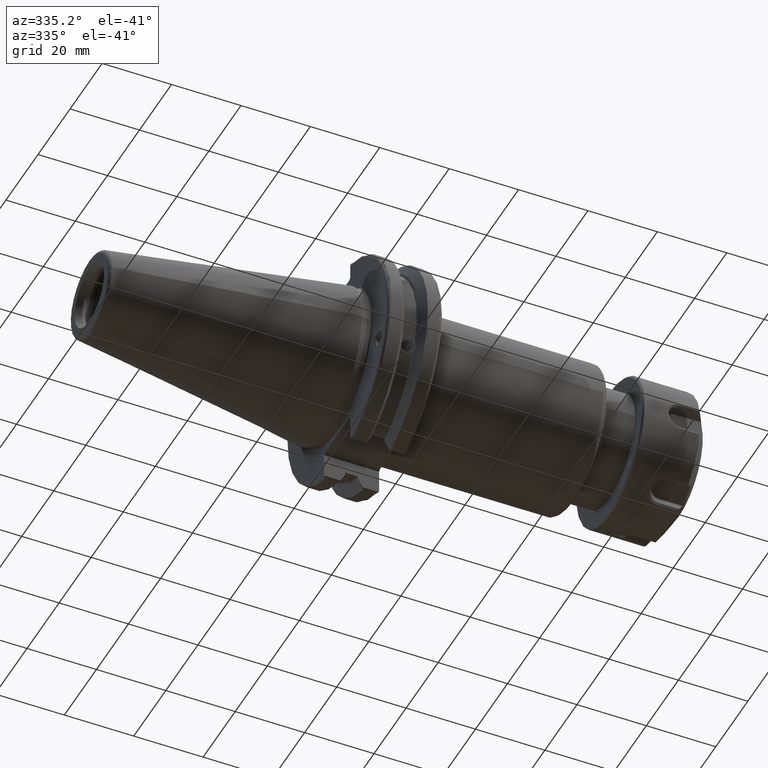
[diagram: clean part render]
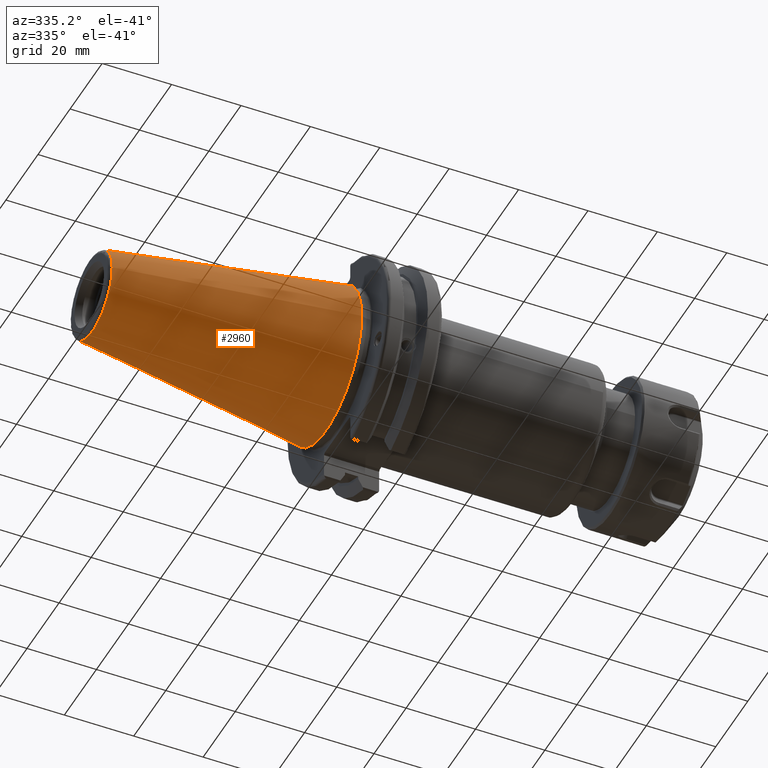
[diagram: same view with one face highlighted and labeled with its STEP entity id]
A machine part, auxiliary view. The second image highlights one B-rep face of the part: STEP entity #2960.
In plain terms, the highlighted conical surface has half-angle 8.297 deg.
Its self-contained STEP definition (entity closure, byte-faithful):
#457=FACE_OUTER_BOUND('',#640,.T.);
#640=EDGE_LOOP('',(#2339,#2340,#2341,#2342,#2343));
#836=LINE('',#5029,#1023);
#1023=VECTOR('',#3839,17.2484375);
#1195=CIRCLE('',#3284,12.3966635780937);
#1196=CIRCLE('',#3285,12.3966635780937);
#1200=CIRCLE('',#3291,22.225);
#1414=VERTEX_POINT('',#5016);
#1415=VERTEX_POINT('',#5017);
#1418=VERTEX_POINT('',#5027);
#1756=EDGE_CURVE('',#1414,#1415,#1195,.T.);
#1757=EDGE_CURVE('',#1415,#1414,#1196,.T.);
#1761=EDGE_CURVE('',#1418,#1418,#1200,.T.);
#1762=EDGE_CURVE('',#1418,#1415,#836,.T.);
#2339=ORIENTED_EDGE('',*,*,#1761,.F.);
#2340=ORIENTED_EDGE('',*,*,#1762,.T.);
#2341=ORIENTED_EDGE('',*,*,#1756,.F.);
#2342=ORIENTED_EDGE('',*,*,#1757,.F.);
#2343=ORIENTED_EDGE('',*,*,#1762,.F.);
#2886=CONICAL_SURFACE('',#3290,17.2484375,0.144812498238939);
#2960=ADVANCED_FACE('',(#457),#2886,.T.);
#3284=AXIS2_PLACEMENT_3D('',#5018,#3823,#3824);
#3285=AXIS2_PLACEMENT_3D('',#5019,#3825,#3826);
#3290=AXIS2_PLACEMENT_3D('',#5026,#3835,#3836);
#3291=AXIS2_PLACEMENT_3D('',#5028,#3837,#3838);
#3823=DIRECTION('center_axis',(-1.,0.,0.));
#3824=DIRECTION('ref_axis',(0.,-1.,3.06161699786838E-17));
#3825=DIRECTION('center_axis',(-1.,0.,0.));
#3826=DIRECTION('ref_axis',(0.,-1.,3.06161699786838E-17));
#3835=DIRECTION('center_axis',(1.,0.,0.));
#3836=DIRECTION('ref_axis',(0.,1.,0.));
#3837=DIRECTION('center_axis',(1.,0.,0.));
#3838=DIRECTION('ref_axis',(0.,0.,-1.));
#3839=DIRECTION('',(-0.989532981063282,0.144306893071729,1.76724974695192E-17));
#5016=CARTESIAN_POINT('',(-67.3943068930717,-1.5181534371019E-15,12.3966635780937));
#5017=CARTESIAN_POINT('',(-67.3943068930718,-12.3966635780937,-1.5181534371019E-15));
#5018=CARTESIAN_POINT('Origin',(-67.3943068930717,0.,-1.89769179637738E-15));
#5019=CARTESIAN_POINT('Origin',(-67.3943068930717,0.,-1.89769179637738E-15));
#5026=CARTESIAN_POINT('Origin',(-34.125,0.,0.));
#5027=CARTESIAN_POINT('',(0.,-22.225,-2.72177751110499E-15));
#5028=CARTESIAN_POINT('Origin',(0.,0.,0.));
#5029=CARTESIAN_POINT('',(-34.125,-17.2484375,-2.11232437746682E-15));